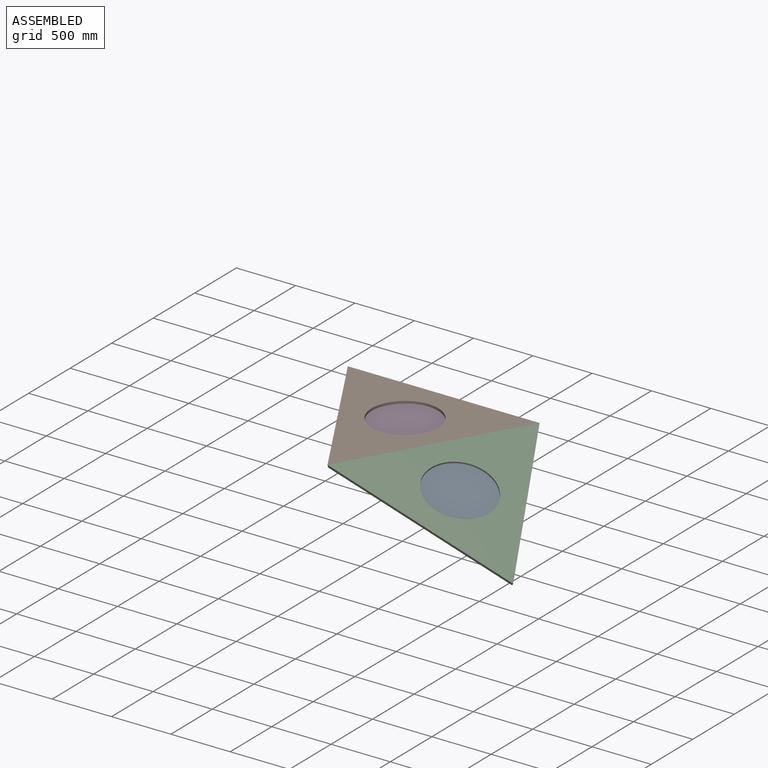
[diagram: assembled view]
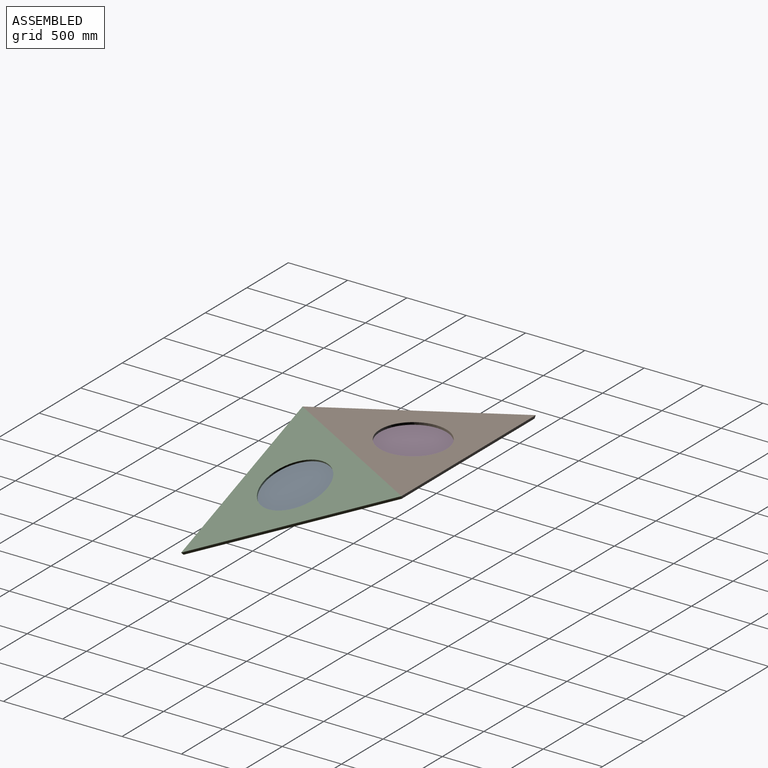
[diagram: assembled view, second angle]
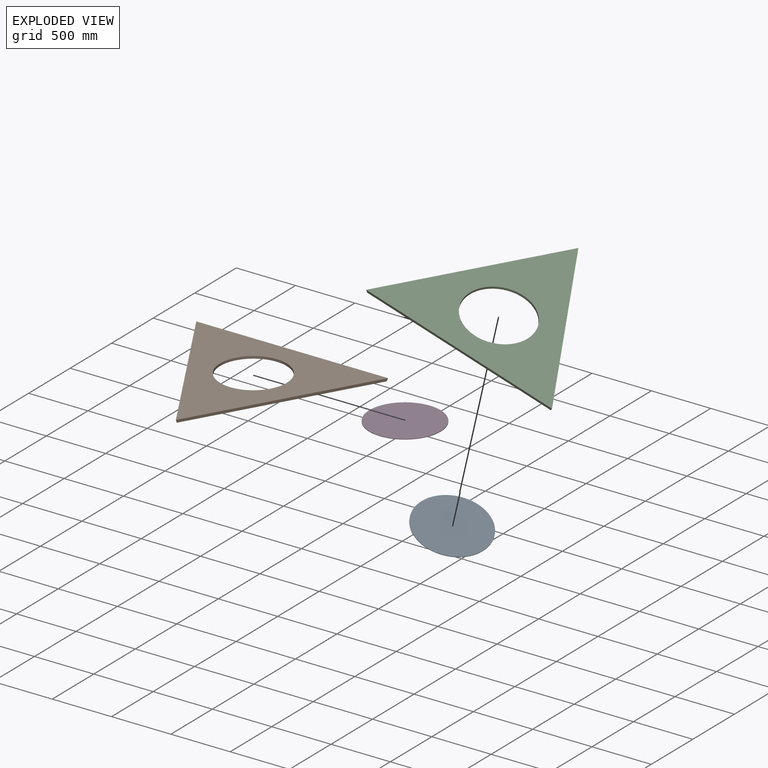
[diagram: exploded view]
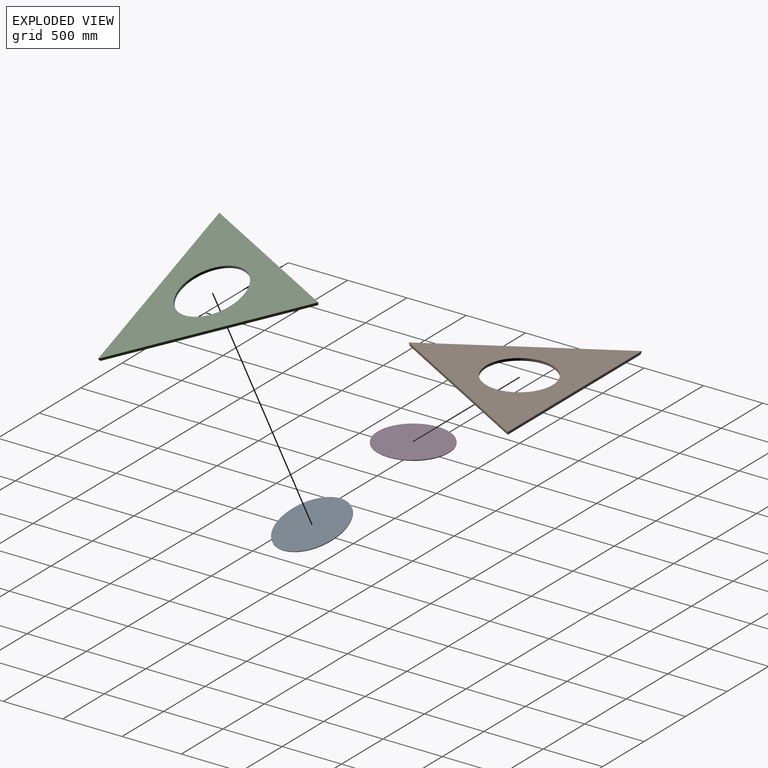
[diagram: exploded view, second angle]
ASSEMBLY  parts=4 mates=2
PART A: 3 faces, bbox 600x600x5 mm
  f0: cylinder r=300mm len=600mm, axis (0,0,-1), area 9424.8mm2, adj f1,f2
  f1: plane 600x600mm, normal (0,0,1), area 282743.3mm2, adj f0
  f2: plane 600x600mm, normal (0,0,-1), area 282743.3mm2, adj f0
PART B: 8 faces, bbox 1616.5x1399.9x25 mm
  f0: plane 1616.52x25mm, normal (0,0.98,-0.19), area 40931.5mm2, adj f1,f2,f3,f4
  f1: plane 1399.95x808.26mm, normal (-0.85,-0.49,-0.19), area 40931.5mm2, adj f0,f2,f3,f4
  f2: plane 1399.95x808.26mm, normal (0.85,-0.49,-0.19), area 40931.5mm2, adj f0,f1,f3,f4
  f3: plane 1616.52x1399.95mm, normal (0,0,1), area 885221.1mm2, adj f0,f1,f2,f5
  f4: plane 1600x1385.64mm, normal (0,0,-1), area 825769.2mm2, adj f0,f1,f2,f7
  f5: cylinder r=280mm len=560mm, axis (0,0,-1), area 35185.8mm2, adj f3,f6
  f6: plane 600x600mm, normal (0,0,-1), area 36442.5mm2, adj f5,f7
  f7: cylinder r=300mm len=600mm, axis (0,0,-1), area 9424.8mm2, adj f4,f6
PART C: same geometry as B
PART D: same geometry as A
PLACE A rot(axis=(0.42,0.42,0.8),36.8deg) t=(-88.06,-460.62,-224.02)mm
PLACE B t=(-786.45,475.93,-353.14)mm
PLACE C rot(axis=(0,0.36,-0.93),63.4deg) t=(813.55,475.93,-353.14)mm
PLACE D t=(-786.45,475.93,-353.14)mm
MATE planar A.f0 <-> C.f5  axis (-0.32,0.18,-0.93) through (787.05,-432.53,-518.52)mm
MATE planar C.f1 <-> B.f2  axis (-0.85,0.49,0.19) through (415.61,-218.08,-340.62)mm
